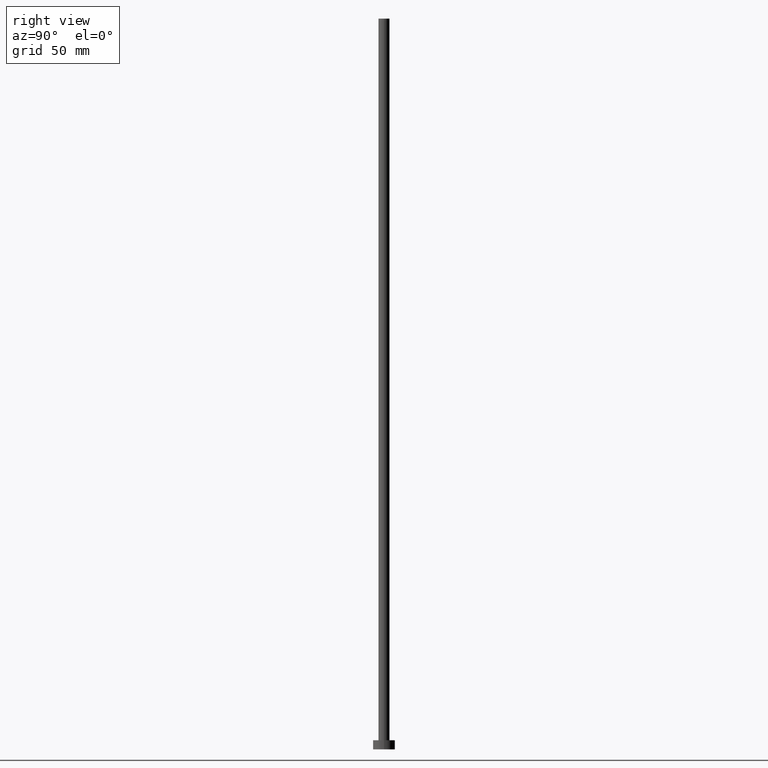
[diagram: clean part render]
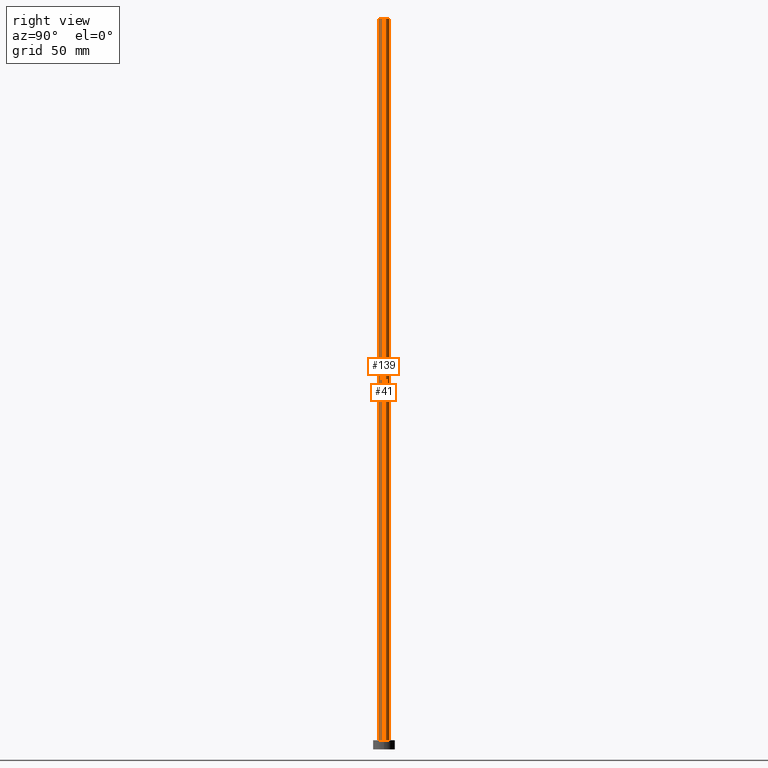
[diagram: same view with one multi-face feature highlighted, each face labeled with its STEP entity id]
A machine part, right view. The highlighted faces form ONE feature: a constant-radius fillet chain: 2 tangent blend faces with common blend radius 3 mm. The faces share edges in the B-rep.
Their STEP definitions:
[1] entity #41 (Cylinder):
#2 = EDGE_CURVE ( 'NONE', #233, #191, #178, .T. ) ;
#5 = CARTESIAN_POINT ( 'NONE',  ( 3.000000000000000444, 3.673940397442059868E-16, 400.0000000000000000 ) ) ;
#7 = DIRECTION ( 'NONE',  ( -0.000000000000000000, -0.000000000000000000, -1.000000000000000000 ) ) ;
#17 = EDGE_LOOP ( 'NONE', ( #40, #254, #111, #120 ) ) ;
#19 = DIRECTION ( 'NONE',  ( -0.000000000000000000, -0.000000000000000000, -1.000000000000000000 ) ) ;
#29 = CARTESIAN_POINT ( 'NONE',  ( 3.000000000000000444, 3.673940397442059868E-16, 400.0000000000000000 ) ) ;
#31 = VERTEX_POINT ( 'NONE', #90 ) ;
#35 = CARTESIAN_POINT ( 'NONE',  ( 0.000000000000000000, 0.000000000000000000, 5.000000000000000000 ) ) ;
#40 = ORIENTED_EDGE ( 'NONE', *, *, #75, .F. ) ;
#41 = ADVANCED_FACE ( 'NONE', ( #152 ), #246, .T. ) ;
#46 = CARTESIAN_POINT ( 'NONE',  ( 0.000000000000000000, 0.000000000000000000, 400.0000000000000000 ) ) ;
#52 = LINE ( 'NONE', #67, #239 ) ;
#65 = AXIS2_PLACEMENT_3D ( 'NONE', #35, #71, #95 ) ;
#67 = CARTESIAN_POINT ( 'NONE',  ( -3.000000000000000444, 0.000000000000000000, 400.0000000000000000 ) ) ;
#68 = CARTESIAN_POINT ( 'NONE',  ( 0.000000000000000000, 0.000000000000000000, 400.0000000000000000 ) ) ;
#71 = DIRECTION ( 'NONE',  ( 0.000000000000000000, 0.000000000000000000, 1.000000000000000000 ) ) ;
#75 = EDGE_CURVE ( 'NONE', #233, #31, #169, .T. ) ;
#90 = CARTESIAN_POINT ( 'NONE',  ( -3.000000000000000444, 0.000000000000000000, 400.0000000000000000 ) ) ;
#95 = DIRECTION ( 'NONE',  ( 1.000000000000000000, 0.000000000000000000, 0.000000000000000000 ) ) ;
#106 = DIRECTION ( 'NONE',  ( 0.000000000000000000, 0.000000000000000000, 1.000000000000000000 ) ) ;
#111 = ORIENTED_EDGE ( 'NONE', *, *, #244, .T. ) ;
#120 = ORIENTED_EDGE ( 'NONE', *, *, #197, .F. ) ;
#121 = VECTOR ( 'NONE', #7, 1000.000000000000000 ) ;
#124 = AXIS2_PLACEMENT_3D ( 'NONE', #68, #19, #140 ) ;
#140 = DIRECTION ( 'NONE',  ( -1.000000000000000000, 0.000000000000000000, 0.000000000000000000 ) ) ;
#148 = CARTESIAN_POINT ( 'NONE',  ( 3.000000000000000444, 3.673940397442059868E-16, 5.000000000000000000 ) ) ;
#152 = FACE_OUTER_BOUND ( 'NONE', #17, .T. ) ;
#166 = DIRECTION ( 'NONE',  ( 1.000000000000000000, 0.000000000000000000, 0.000000000000000000 ) ) ;
#169 = CIRCLE ( 'NONE', #199, 3.000000000000000444 ) ;
#178 = LINE ( 'NONE', #29, #121 ) ;
#179 = CIRCLE ( 'NONE', #65, 3.000000000000000444 ) ;
#191 = VERTEX_POINT ( 'NONE', #148 ) ;
#194 = CARTESIAN_POINT ( 'NONE',  ( -3.000000000000000444, 0.000000000000000000, 5.000000000000000000 ) ) ;
#197 = EDGE_CURVE ( 'NONE', #31, #208, #52, .T. ) ;
#199 = AXIS2_PLACEMENT_3D ( 'NONE', #46, #106, #166 ) ;
#207 = DIRECTION ( 'NONE',  ( -0.000000000000000000, -0.000000000000000000, -1.000000000000000000 ) ) ;
#208 = VERTEX_POINT ( 'NONE', #194 ) ;
#233 = VERTEX_POINT ( 'NONE', #5 ) ;
#239 = VECTOR ( 'NONE', #207, 1000.000000000000000 ) ;
#244 = EDGE_CURVE ( 'NONE', #191, #208, #179, .T. ) ;
#246 = CYLINDRICAL_SURFACE ( 'NONE', #124, 3.000000000000000444 ) ;
#254 = ORIENTED_EDGE ( 'NONE', *, *, #2, .T. ) ;
[2] entity #139 (Cylinder):
#2 = EDGE_CURVE ( 'NONE', #233, #191, #178, .T. ) ;
#5 = CARTESIAN_POINT ( 'NONE',  ( 3.000000000000000444, 3.673940397442059868E-16, 400.0000000000000000 ) ) ;
#7 = DIRECTION ( 'NONE',  ( -0.000000000000000000, -0.000000000000000000, -1.000000000000000000 ) ) ;
#15 = FACE_OUTER_BOUND ( 'NONE', #72, .T. ) ;
#18 = AXIS2_PLACEMENT_3D ( 'NONE', #234, #50, #89 ) ;
#20 = CIRCLE ( 'NONE', #162, 3.000000000000000444 ) ;
#29 = CARTESIAN_POINT ( 'NONE',  ( 3.000000000000000444, 3.673940397442059868E-16, 400.0000000000000000 ) ) ;
#31 = VERTEX_POINT ( 'NONE', #90 ) ;
#34 = ORIENTED_EDGE ( 'NONE', *, *, #2, .F. ) ;
#50 = DIRECTION ( 'NONE',  ( -0.000000000000000000, -0.000000000000000000, -1.000000000000000000 ) ) ;
#52 = LINE ( 'NONE', #67, #239 ) ;
#55 = CARTESIAN_POINT ( 'NONE',  ( 0.000000000000000000, 0.000000000000000000, 400.0000000000000000 ) ) ;
#67 = CARTESIAN_POINT ( 'NONE',  ( -3.000000000000000444, 0.000000000000000000, 400.0000000000000000 ) ) ;
#72 = EDGE_LOOP ( 'NONE', ( #34, #79, #155, #174 ) ) ;
#79 = ORIENTED_EDGE ( 'NONE', *, *, #170, .F. ) ;
#89 = DIRECTION ( 'NONE',  ( -1.000000000000000000, 0.000000000000000000, 0.000000000000000000 ) ) ;
#90 = CARTESIAN_POINT ( 'NONE',  ( -3.000000000000000444, 0.000000000000000000, 400.0000000000000000 ) ) ;
#93 = DIRECTION ( 'NONE',  ( 1.000000000000000000, 0.000000000000000000, 0.000000000000000000 ) ) ;
#98 = CYLINDRICAL_SURFACE ( 'NONE', #18, 3.000000000000000444 ) ;
#109 = DIRECTION ( 'NONE',  ( 1.000000000000000000, 0.000000000000000000, 0.000000000000000000 ) ) ;
#121 = VECTOR ( 'NONE', #7, 1000.000000000000000 ) ;
#139 = ADVANCED_FACE ( 'NONE', ( #15 ), #98, .T. ) ;
#148 = CARTESIAN_POINT ( 'NONE',  ( 3.000000000000000444, 3.673940397442059868E-16, 5.000000000000000000 ) ) ;
#155 = ORIENTED_EDGE ( 'NONE', *, *, #197, .T. ) ;
#162 = AXIS2_PLACEMENT_3D ( 'NONE', #55, #245, #109 ) ;
#170 = EDGE_CURVE ( 'NONE', #31, #233, #20, .T. ) ;
#173 = DIRECTION ( 'NONE',  ( 0.000000000000000000, 0.000000000000000000, 1.000000000000000000 ) ) ;
#174 = ORIENTED_EDGE ( 'NONE', *, *, #203, .T. ) ;
#177 = CARTESIAN_POINT ( 'NONE',  ( 0.000000000000000000, 0.000000000000000000, 5.000000000000000000 ) ) ;
#178 = LINE ( 'NONE', #29, #121 ) ;
#191 = VERTEX_POINT ( 'NONE', #148 ) ;
#194 = CARTESIAN_POINT ( 'NONE',  ( -3.000000000000000444, 0.000000000000000000, 5.000000000000000000 ) ) ;
#197 = EDGE_CURVE ( 'NONE', #31, #208, #52, .T. ) ;
#203 = EDGE_CURVE ( 'NONE', #208, #191, #230, .T. ) ;
#207 = DIRECTION ( 'NONE',  ( -0.000000000000000000, -0.000000000000000000, -1.000000000000000000 ) ) ;
#208 = VERTEX_POINT ( 'NONE', #194 ) ;
#230 = CIRCLE ( 'NONE', #255, 3.000000000000000444 ) ;
#233 = VERTEX_POINT ( 'NONE', #5 ) ;
#234 = CARTESIAN_POINT ( 'NONE',  ( 0.000000000000000000, 0.000000000000000000, 400.0000000000000000 ) ) ;
#239 = VECTOR ( 'NONE', #207, 1000.000000000000000 ) ;
#245 = DIRECTION ( 'NONE',  ( 0.000000000000000000, 0.000000000000000000, 1.000000000000000000 ) ) ;
#255 = AXIS2_PLACEMENT_3D ( 'NONE', #177, #173, #93 ) ;